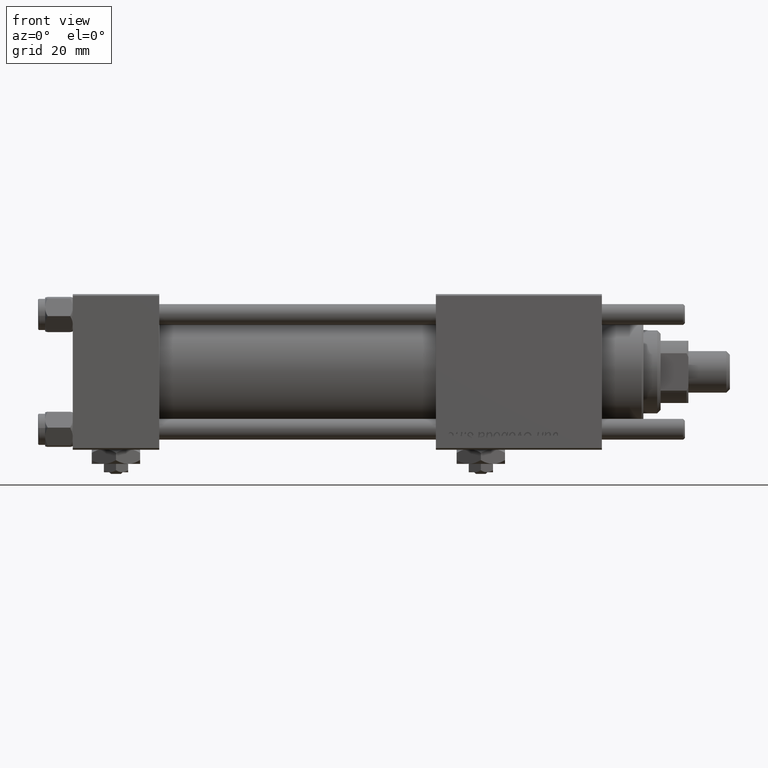
[diagram: clean part render]
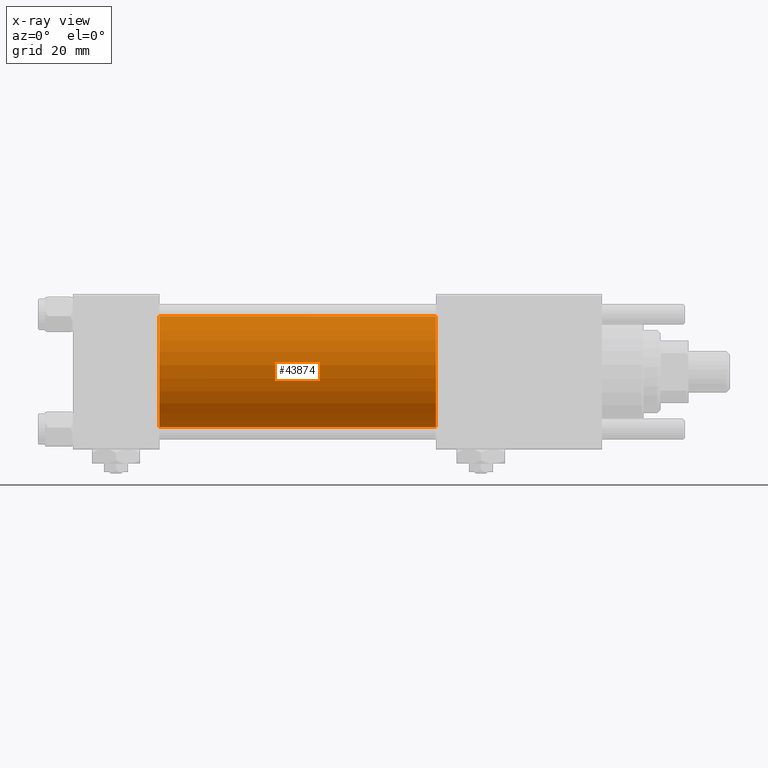
[diagram: x-ray — body ghosted, one internal face saturated and labeled with its STEP entity id]
A machine part, front view, then the same camera in x-ray: the body is ghosted and one INTERNAL B-rep face — a face not visible from any outside direction — is saturated and labeled: STEP entity #43874.
In plain terms, the highlighted cylindrical surface (partial cylindrical patch) has radius 16 mm, axis along (-1, -0, -0).
Its self-contained STEP definition (entity closure, byte-faithful):
#324 = CARTESIAN_POINT ( 'NONE',  ( 25.00000000000000000, -2.602085213965210642E-15, 16.00000000000000000 ) ) ;
#1592 = AXIS2_PLACEMENT_3D ( 'NONE', #3402, #58332, #26481 ) ;
#1888 = CARTESIAN_POINT ( 'NONE',  ( 105.0000000000000142, -6.426503353294456087E-16, -16.00000000000000000 ) ) ;
#3377 = CARTESIAN_POINT ( 'NONE',  ( 105.0000000000000142, -2.602085213965210642E-15, 16.00000000000000000 ) ) ;
#3402 = CARTESIAN_POINT ( 'NONE',  ( 105.0000000000000142, -2.602085213965210642E-15, 0.000000000000000000 ) ) ;
#4039 = CIRCLE ( 'NONE', #38935, 16.00000000000000000 ) ;
#4405 = VERTEX_POINT ( 'NONE', #24888 ) ;
#5532 = LINE ( 'NONE', #34352, #35735 ) ;
#5980 = ORIENTED_EDGE ( 'NONE', *, *, #38728, .T. ) ;
#10958 = DIRECTION ( 'NONE',  ( 1.000000000000000000, 0.000000000000000000, 0.000000000000000000 ) ) ;
#14550 = EDGE_CURVE ( 'NONE', #14631, #44999, #5532, .T. ) ;
#14631 = VERTEX_POINT ( 'NONE', #3377 ) ;
#15501 = CARTESIAN_POINT ( 'NONE',  ( 105.0000000000000142, -2.602085213965210642E-15, 0.000000000000000000 ) ) ;
#18852 = ORIENTED_EDGE ( 'NONE', *, *, #25273, .F. ) ;
#19457 = DIRECTION ( 'NONE',  ( 0.000000000000000000, 0.000000000000000000, -1.000000000000000000 ) ) ;
#19961 = CIRCLE ( 'NONE', #44243, 16.00000000000000000 ) ;
#20094 = LINE ( 'NONE', #1888, #55632 ) ;
#24888 = CARTESIAN_POINT ( 'NONE',  ( 25.00000000000000000, -6.426503353294456087E-16, -16.00000000000000000 ) ) ;
#25251 = DIRECTION ( 'NONE',  ( -1.000000000000000000, -0.000000000000000000, -0.000000000000000000 ) ) ;
#25273 = EDGE_CURVE ( 'NONE', #44999, #4405, #4039, .T. ) ;
#26481 = DIRECTION ( 'NONE',  ( 0.000000000000000000, 0.000000000000000000, 1.000000000000000000 ) ) ;
#33880 = EDGE_LOOP ( 'NONE', ( #39593, #5980, #18852, #49170 ) ) ;
#34352 = CARTESIAN_POINT ( 'NONE',  ( 105.0000000000000142, -2.602085213965210642E-15, 16.00000000000000000 ) ) ;
#35735 = VECTOR ( 'NONE', #51648, 1000.000000000000000 ) ;
#38728 = EDGE_CURVE ( 'NONE', #57650, #4405, #20094, .T. ) ;
#38935 = AXIS2_PLACEMENT_3D ( 'NONE', #40869, #55373, #59339 ) ;
#39593 = ORIENTED_EDGE ( 'NONE', *, *, #53458, .T. ) ;
#40869 = CARTESIAN_POINT ( 'NONE',  ( 25.00000000000000000, -2.602085213965210642E-15, 0.000000000000000000 ) ) ;
#43874 = ADVANCED_FACE ( 'NONE', ( #48640 ), #48341, .F. ) ;
#44243 = AXIS2_PLACEMENT_3D ( 'NONE', #15501, #10958, #19457 ) ;
#44999 = VERTEX_POINT ( 'NONE', #324 ) ;
#48341 = CYLINDRICAL_SURFACE ( 'NONE', #1592, 16.00000000000000000 ) ;
#48640 = FACE_OUTER_BOUND ( 'NONE', #33880, .T. ) ;
#49170 = ORIENTED_EDGE ( 'NONE', *, *, #14550, .F. ) ;
#51648 = DIRECTION ( 'NONE',  ( -1.000000000000000000, -0.000000000000000000, -0.000000000000000000 ) ) ;
#53458 = EDGE_CURVE ( 'NONE', #14631, #57650, #19961, .T. ) ;
#55373 = DIRECTION ( 'NONE',  ( 1.000000000000000000, 0.000000000000000000, 0.000000000000000000 ) ) ;
#55632 = VECTOR ( 'NONE', #25251, 1000.000000000000000 ) ;
#56503 = CARTESIAN_POINT ( 'NONE',  ( 105.0000000000000142, -6.426503353294456087E-16, -16.00000000000000000 ) ) ;
#57650 = VERTEX_POINT ( 'NONE', #56503 ) ;
#58332 = DIRECTION ( 'NONE',  ( -1.000000000000000000, -0.000000000000000000, -0.000000000000000000 ) ) ;
#59339 = DIRECTION ( 'NONE',  ( 0.000000000000000000, 0.000000000000000000, -1.000000000000000000 ) ) ;